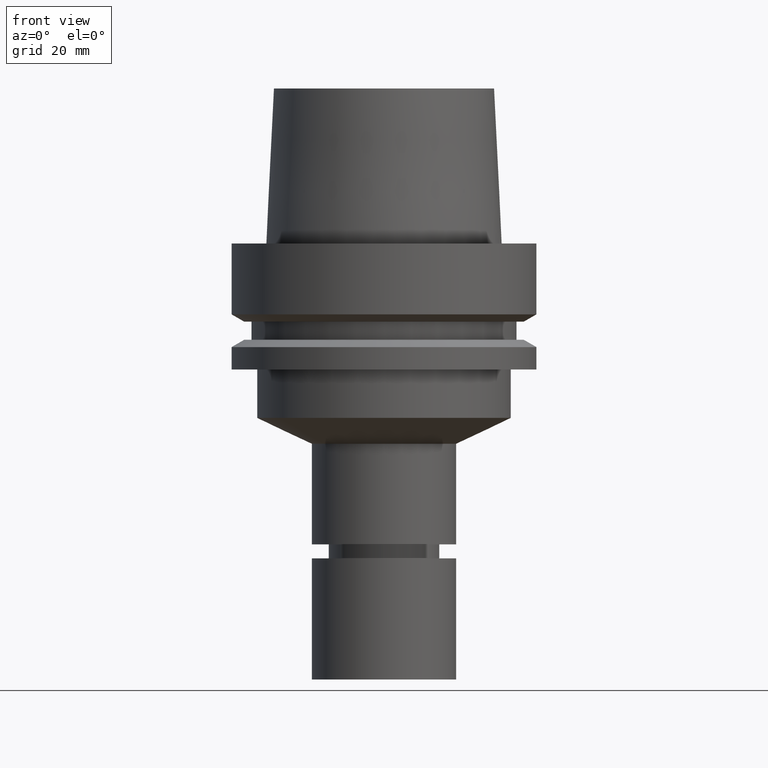
[diagram: clean part render]
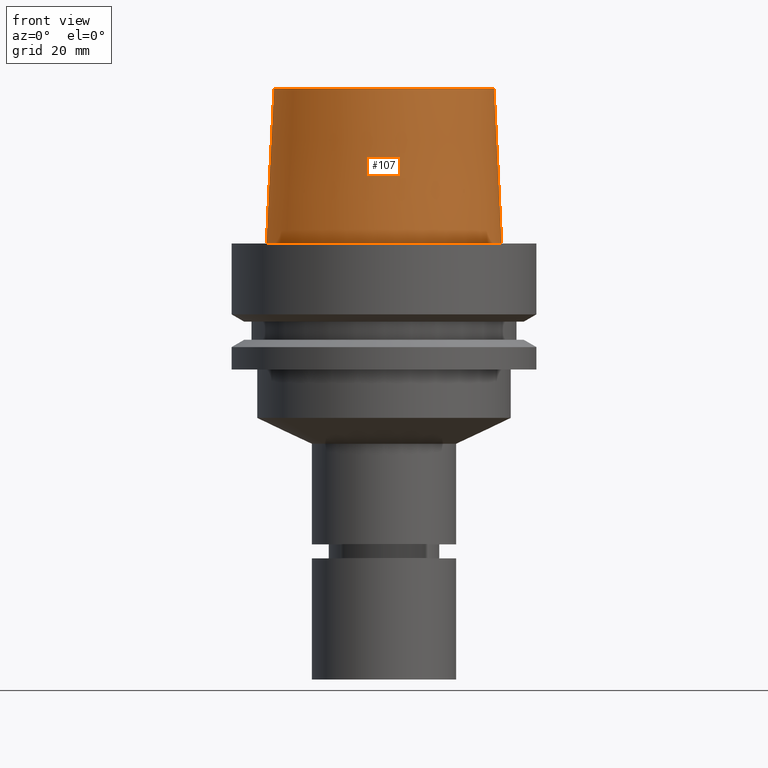
[diagram: same view with one face highlighted and labeled with its STEP entity id]
A machine part, front view. The second image highlights one B-rep face of the part: STEP entity #107.
In plain terms, the highlighted conical surface has half-angle 2.862 deg.
Its self-contained STEP definition (entity closure, byte-faithful):
#107=ADVANCED_FACE('Unnamed[1]',(#256,#257),#258,.T.);
#158=EDGE_CURVE('Unnamed[1]',#336,#336,#337,.T.);
#189=EDGE_CURVE('Unnamed[1]',#385,#385,#386,.T.);
#256=FACE_BOUND('',#458,.T.);
#257=FACE_BOUND('',#459,.T.);
#258=CONICAL_SURFACE('',#460,23.515,0.0499583957219433);
#336=VERTEX_POINT('',#557);
#337=CIRCLE('',#558,24.315);
#385=VERTEX_POINT('',#618);
#386=CIRCLE('',#619,22.715);
#458=EDGE_LOOP('',(#673));
#459=EDGE_LOOP('',(#674));
#460=AXIS2_PLACEMENT_3D('',#675,#676,#677);
#557=CARTESIAN_POINT('',(-2.99705514225764E-031,24.315,2.97772869212679E-015));
#558=AXIS2_PLACEMENT_3D('',#762,#763,#764);
#618=CARTESIAN_POINT('',(-1.95943487863576E-015,22.715,32.0));
#619=AXIS2_PLACEMENT_3D('',#818,#819,#820);
#673=ORIENTED_EDGE('',*,*,#189,.F.);
#674=ORIENTED_EDGE('',*,*,#158,.T.);
#675=CARTESIAN_POINT('',(-9.79717439317882E-016,-1.95943487863576E-015,16.0));
#676=DIRECTION('',(6.12323399573677E-017,1.22464679914735E-016,-1.0));
#677=DIRECTION('',(-1.23259516440783E-032,1.0,1.22464679914735E-016));
#762=CARTESIAN_POINT('',(0.0,0.0,0.0));
#763=DIRECTION('',(-6.12323399573677E-017,-1.22464679914735E-016,1.0));
#764=DIRECTION('',(-1.23259516440783E-032,1.0,1.22464679914735E-016));
#818=CARTESIAN_POINT('',(-1.95943487863576E-015,-3.91886975727153E-015,32.0));
#819=DIRECTION('',(-6.12323399573676E-017,-1.22464679914735E-016,1.0));
#820=DIRECTION('',(-1.23259516440783E-032,1.0,1.22464679914735E-016));